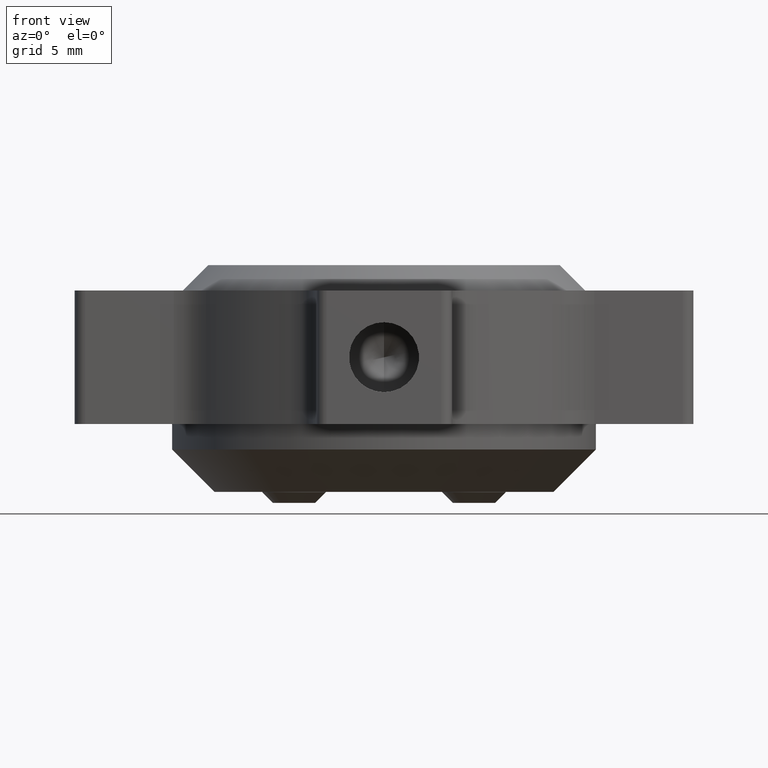
[diagram: clean part render]
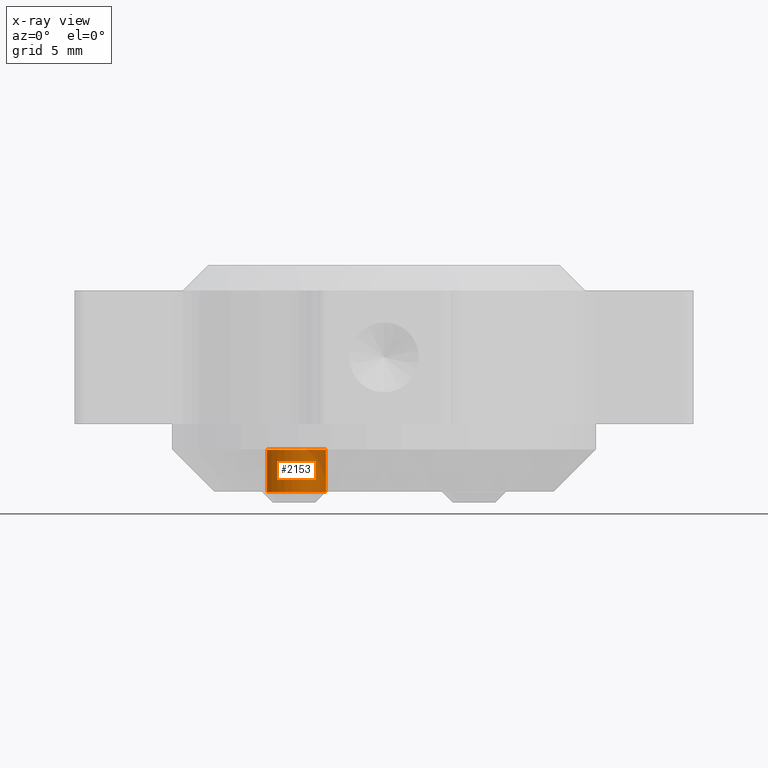
[diagram: x-ray — body ghosted, one internal face saturated and labeled with its STEP entity id]
A machine part, front view, then the same camera in x-ray: the body is ghosted and one INTERNAL B-rep face — a face not visible from any outside direction — is saturated and labeled: STEP entity #2153.
In plain terms, the highlighted cylindrical surface (edge-blend (fillet) strip) has radius 1.5 mm, axis along (0, 0, 1).
Its self-contained STEP definition (entity closure, byte-faithful):
#149 = CIRCLE ( 'NONE', #741, 1.500000000000030198 ) ;
#167 = DIRECTION ( 'NONE',  ( 0.000000000000000000, 0.000000000000000000, 1.000000000000000000 ) ) ;
#358 = VECTOR ( 'NONE', #2652, 1000.000000000000000 ) ;
#361 = CARTESIAN_POINT ( 'NONE',  ( -4.874381575745959871, 2.020419768386496617, 23.32967437858455639 ) ) ;
#432 = ORIENTED_EDGE ( 'NONE', *, *, #1341, .F. ) ;
#503 = EDGE_CURVE ( 'NONE', #2580, #1496, #1622, .T. ) ;
#648 = DIRECTION ( 'NONE',  ( 0.8564925482312414351, 0.5161593889723934403, 0.000000000000000000 ) ) ;
#651 = DIRECTION ( 'NONE',  ( 0.000000000000000000, 0.000000000000000000, -1.000000000000000000 ) ) ;
#664 = CARTESIAN_POINT ( 'NONE',  ( -6.159120398092848170, 1.246180684927890914, 23.82967437858455639 ) ) ;
#741 = AXIS2_PLACEMENT_3D ( 'NONE', #664, #2657, #648 ) ;
#838 = AXIS2_PLACEMENT_3D ( 'NONE', #3177, #873, #1926 ) ;
#873 = DIRECTION ( 'NONE',  ( 0.000000000000000000, 0.000000000000000000, 1.000000000000000000 ) ) ;
#919 = EDGE_CURVE ( 'NONE', #1496, #1344, #1632, .T. ) ;
#943 = AXIS2_PLACEMENT_3D ( 'NONE', #1952, #651, #1435 ) ;
#1122 = CARTESIAN_POINT ( 'NONE',  ( -7.443859220439736468, 0.4719416014692849881, 23.32967437858455639 ) ) ;
#1203 = CARTESIAN_POINT ( 'NONE',  ( -7.443859220439710711, 0.4719416014693005867, 23.82967437858455639 ) ) ;
#1214 = CARTESIAN_POINT ( 'NONE',  ( -4.874381575745986517, 2.020419768386481074, 23.82967437858455639 ) ) ;
#1274 = EDGE_CURVE ( 'NONE', #1925, #2580, #149, .T. ) ;
#1341 = EDGE_CURVE ( 'NONE', #1925, #1344, #2449, .T. ) ;
#1344 = VERTEX_POINT ( 'NONE', #2374 ) ;
#1435 = DIRECTION ( 'NONE',  ( 0.8564925482312414351, 0.5161593889723934403, 0.000000000000000000 ) ) ;
#1496 = VERTEX_POINT ( 'NONE', #2990 ) ;
#1622 = LINE ( 'NONE', #361, #358 ) ;
#1632 = CIRCLE ( 'NONE', #943, 1.500000000000030198 ) ;
#1925 = VERTEX_POINT ( 'NONE', #1203 ) ;
#1926 = DIRECTION ( 'NONE',  ( -0.8564925482312414351, -0.5161593889723934403, 0.000000000000000000 ) ) ;
#1952 = CARTESIAN_POINT ( 'NONE',  ( -6.159120398092848170, 1.246180684927890914, 25.82967437858455639 ) ) ;
#2153 = ADVANCED_FACE ( 'NONE', ( #3144 ), #2413, .T. ) ;
#2246 = ORIENTED_EDGE ( 'NONE', *, *, #919, .T. ) ;
#2347 = ORIENTED_EDGE ( 'NONE', *, *, #503, .T. ) ;
#2365 = EDGE_LOOP ( 'NONE', ( #2829, #2347, #2246, #432 ) ) ;
#2374 = CARTESIAN_POINT ( 'NONE',  ( -7.443859220439710711, 0.4719416014693005867, 25.82967437858455639 ) ) ;
#2413 = CYLINDRICAL_SURFACE ( 'NONE', #838, 1.500000000000030198 ) ;
#2449 = LINE ( 'NONE', #1122, #2543 ) ;
#2543 = VECTOR ( 'NONE', #167, 1000.000000000000000 ) ;
#2580 = VERTEX_POINT ( 'NONE', #1214 ) ;
#2652 = DIRECTION ( 'NONE',  ( 0.000000000000000000, 0.000000000000000000, 1.000000000000000000 ) ) ;
#2657 = DIRECTION ( 'NONE',  ( -0.000000000000000000, -0.000000000000000000, 1.000000000000000000 ) ) ;
#2829 = ORIENTED_EDGE ( 'NONE', *, *, #1274, .T. ) ;
#2990 = CARTESIAN_POINT ( 'NONE',  ( -4.874381575745986517, 2.020419768386481074, 25.82967437858455639 ) ) ;
#3144 = FACE_OUTER_BOUND ( 'NONE', #2365, .T. ) ;
#3177 = CARTESIAN_POINT ( 'NONE',  ( -6.159120398092848170, 1.246180684927890914, 23.32967437858455639 ) ) ;